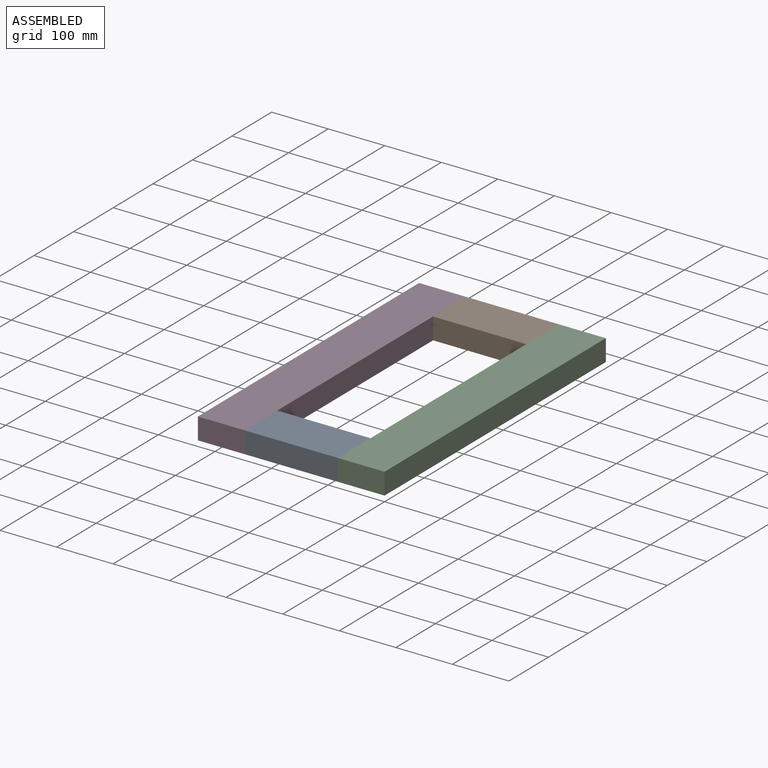
[diagram: assembled view]
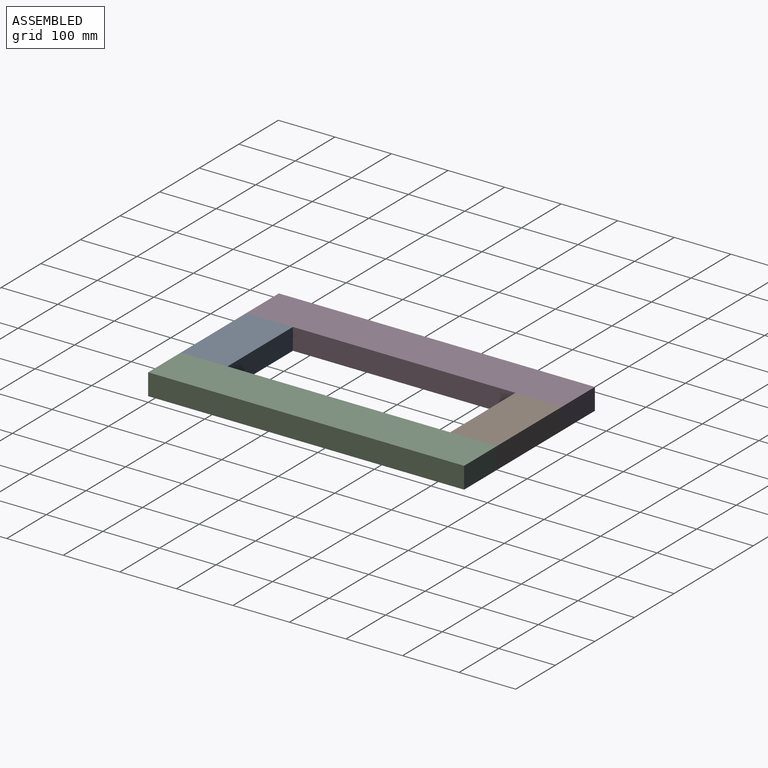
[diagram: assembled view, second angle]
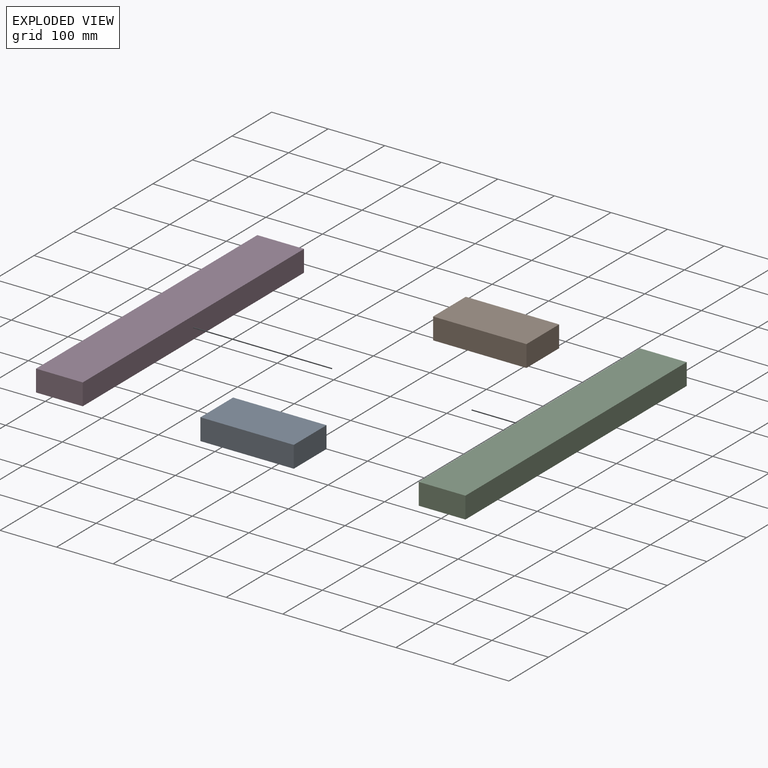
[diagram: exploded view]
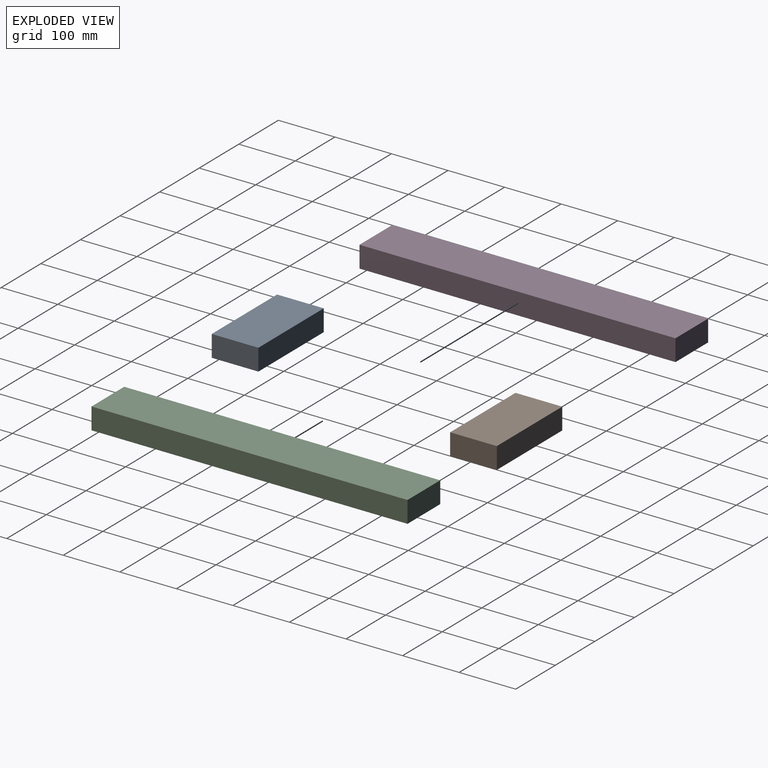
[diagram: exploded view, second angle]
ASSEMBLY  parts=4 mates=3
PART A: 6 faces, bbox 38.1x165.1x82.6 mm
  f0: plane 165.1x82.55mm, normal (-1,0,0), area 13629mm2, adj f1,f3,f4,f5
  f1: plane 165.1x38.1mm, normal (0,0,-1), area 6290.3mm2, adj f0,f2,f4,f5
  f2: plane 165.1x82.55mm, normal (1,0,0), area 13629mm2, adj f1,f3,f4,f5
  f3: plane 165.1x38.1mm, normal (0,0,1), area 6290.3mm2, adj f0,f2,f4,f5
  f4: plane 82.55x38.1mm, normal (0,-1,0), area 3145.2mm2, adj f0,f1,f2,f3
  f5: plane 82.55x38.1mm, normal (0,1,0), area 3145.2mm2, adj f0,f1,f2,f3
PART B: same geometry as A
PART C: 6 faces, bbox 38.1x558.8x82.6 mm
  f0: plane 558.8x82.55mm, normal (-1,0,0), area 46128.9mm2, adj f1,f3,f4,f5
  f1: plane 558.8x38.1mm, normal (0,0,-1), area 21290.3mm2, adj f0,f2,f4,f5
  f2: plane 558.8x82.55mm, normal (1,0,0), area 46128.9mm2, adj f1,f3,f4,f5
  f3: plane 558.8x38.1mm, normal (0,0,1), area 21290.3mm2, adj f0,f2,f4,f5
  f4: plane 82.55x38.1mm, normal (0,-1,0), area 3145.2mm2, adj f0,f1,f2,f3
  f5: plane 82.55x38.1mm, normal (0,1,0), area 3145.2mm2, adj f0,f1,f2,f3
PART D: same geometry as C
PLACE A rot(axis=(0.58,-0.58,0.58),120deg) t=(-247.65,82.55,0)mm
PLACE B rot(axis=(0.58,0.58,-0.58),120deg) t=(-82.55,558.8,38.1)mm
PLACE C rot(axis=(0,1,0),90deg) t=(-82.55,558.8,38.1)mm
PLACE D rot(axis=(0,1,0),90deg) t=(-330.2,558.8,38.1)mm
MATE fastened A.f4 <-> C.f1  axis (1,0,0) through (-82.55,0,0)mm
MATE fastened D.f3 <-> A.f5  axis (1,0,0) through (-247.65,0,19.05)mm
MATE fastened B.f5 <-> C.f1  axis (1,0,0) through (-82.55,558.8,0)mm
